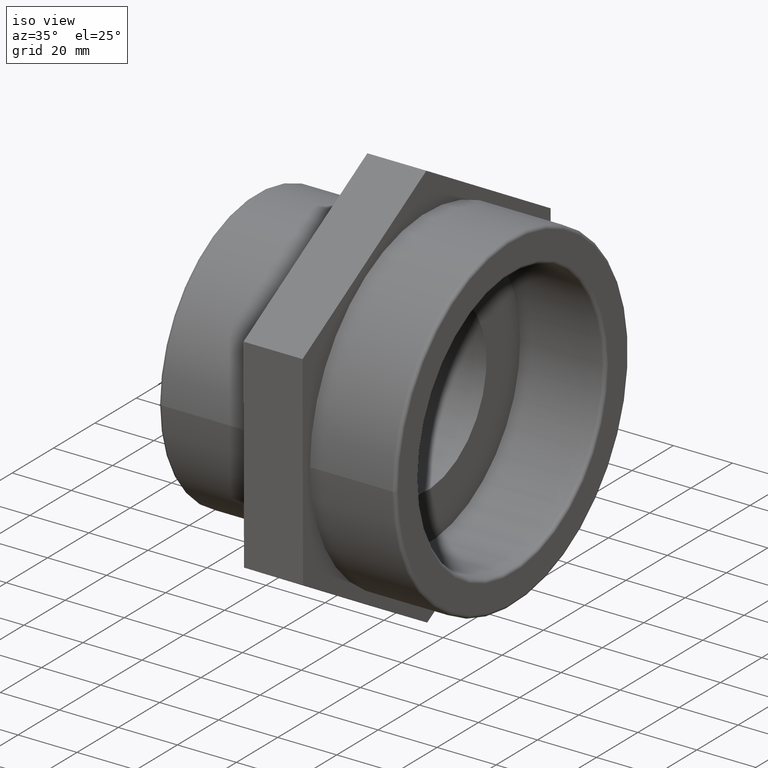
[diagram: clean part render]
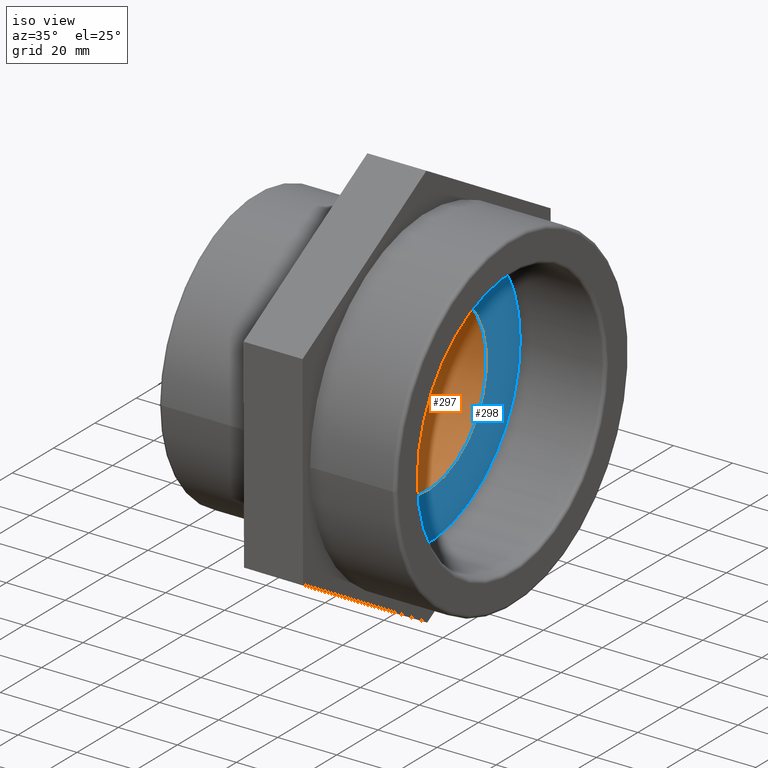
[diagram: same view with the hole feature highlighted: cylindrical wall and planar end face, labeled with their STEP entity ids]
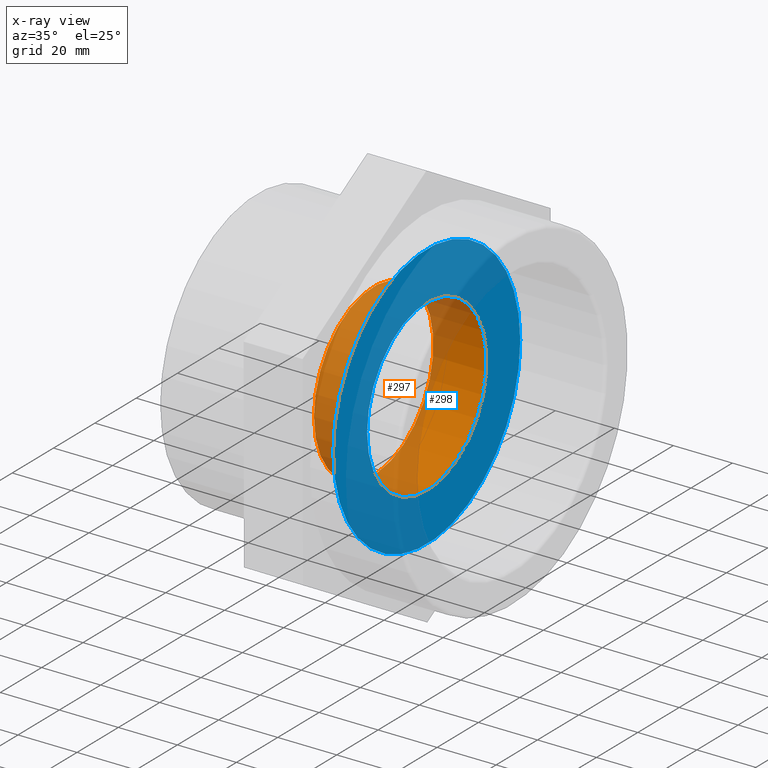
[diagram: x-ray of the same camera — body ghosted, the hole faces saturated]
A machine part, iso view. The highlighted faces form one hole feature of diameter 57.7808 mm: the cylindrical wall (entity #297, orange) and its adjacent planar end face (entity #298, blue) — they share a circular edge in the B-rep.
The next image is the same camera in x-ray (body ghosted, the hole faces saturated) — the bore reads through the body.
Wall:
#55=CYLINDRICAL_SURFACE('',#333,28.8904);
#79=FACE_BOUND('',#133,.T.);
#100=FACE_OUTER_BOUND('',#132,.T.);
#132=EDGE_LOOP('',(#258));
#133=EDGE_LOOP('',(#259));
#152=CIRCLE('',#332,28.8904);
#153=CIRCLE('',#334,28.8904);
#178=VERTEX_POINT('',#500);
#179=VERTEX_POINT('',#503);
#210=EDGE_CURVE('',#178,#178,#152,.T.);
#211=EDGE_CURVE('',#179,#179,#153,.T.);
#258=ORIENTED_EDGE('',*,*,#211,.F.);
#259=ORIENTED_EDGE('',*,*,#210,.T.);
#297=ADVANCED_FACE('',(#100,#79),#55,.F.);
#332=AXIS2_PLACEMENT_3D('',#501,#416,#417);
#333=AXIS2_PLACEMENT_3D('',#502,#418,#419);
#334=AXIS2_PLACEMENT_3D('',#504,#420,#421);
#416=DIRECTION('center_axis',(-1.,-1.83697019872103E-16,0.));
#417=DIRECTION('ref_axis',(0.,0.,1.));
#418=DIRECTION('center_axis',(-1.,-1.83697019872103E-16,0.));
#419=DIRECTION('ref_axis',(1.84458177048457E-16,-1.,0.));
#420=DIRECTION('center_axis',(-1.,-1.83697019872103E-16,0.));
#421=DIRECTION('ref_axis',(0.,0.,1.));
#500=CARTESIAN_POINT('',(-3.50000000000001,-28.8904,0.));
#501=CARTESIAN_POINT('Origin',(-3.50000000000001,7.34788079488412E-15,0.));
#502=CARTESIAN_POINT('Origin',(5.49999999999999,9.00115397373305E-15,0.));
#503=CARTESIAN_POINT('',(14.5,-28.8904,0.));
#504=CARTESIAN_POINT('Origin',(14.5,1.0654427152582E-14,0.));
End face:
#65=PLANE('',#335);
#80=FACE_BOUND('',#135,.T.);
#101=FACE_OUTER_BOUND('',#134,.T.);
#134=EDGE_LOOP('',(#260));
#135=EDGE_LOOP('',(#261));
#143=CIRCLE('',#309,45.212);
#153=CIRCLE('',#334,28.8904);
#157=VERTEX_POINT('',#438);
#179=VERTEX_POINT('',#503);
#183=EDGE_CURVE('',#157,#157,#143,.T.);
#211=EDGE_CURVE('',#179,#179,#153,.T.);
#260=ORIENTED_EDGE('',*,*,#183,.F.);
#261=ORIENTED_EDGE('',*,*,#211,.T.);
#298=ADVANCED_FACE('',(#101,#80),#65,.T.);
#309=AXIS2_PLACEMENT_3D('',#439,#352,#353);
#334=AXIS2_PLACEMENT_3D('',#504,#420,#421);
#335=AXIS2_PLACEMENT_3D('',#505,#422,#423);
#352=DIRECTION('center_axis',(-1.,-1.83697019872103E-16,0.));
#353=DIRECTION('ref_axis',(0.,0.,1.));
#420=DIRECTION('center_axis',(-1.,-1.83697019872103E-16,0.));
#421=DIRECTION('ref_axis',(0.,0.,1.));
#422=DIRECTION('center_axis',(1.,1.83697019872103E-16,0.));
#423=DIRECTION('ref_axis',(0.,0.,-1.));
#438=CARTESIAN_POINT('',(14.5,-45.212,0.));
#439=CARTESIAN_POINT('Origin',(14.5,1.0654427152582E-14,0.));
#503=CARTESIAN_POINT('',(14.5,-28.8904,0.));
#504=CARTESIAN_POINT('Origin',(14.5,1.0654427152582E-14,0.));
#505=CARTESIAN_POINT('Origin',(14.5,-45.212,0.));